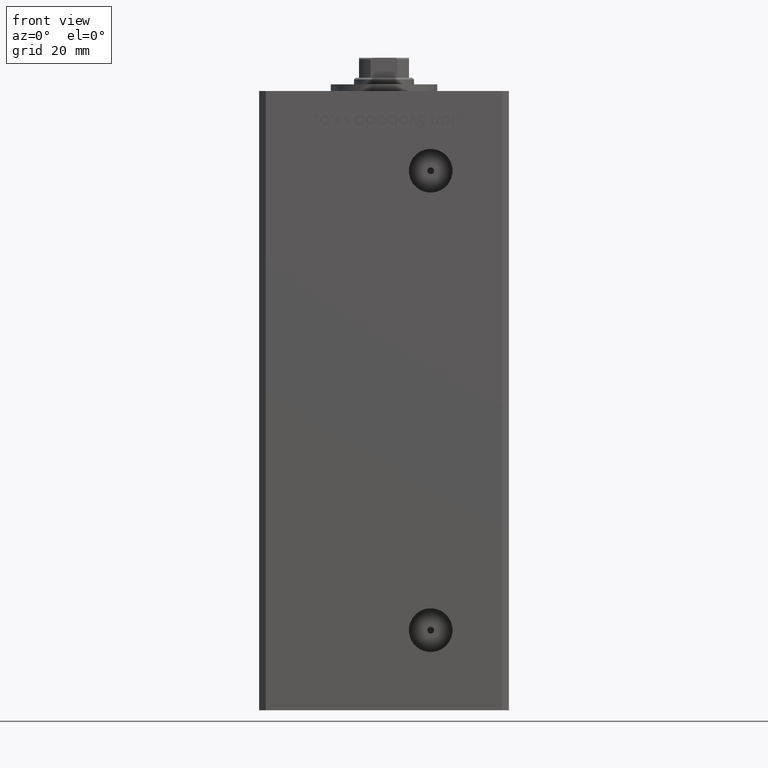
[diagram: clean part render]
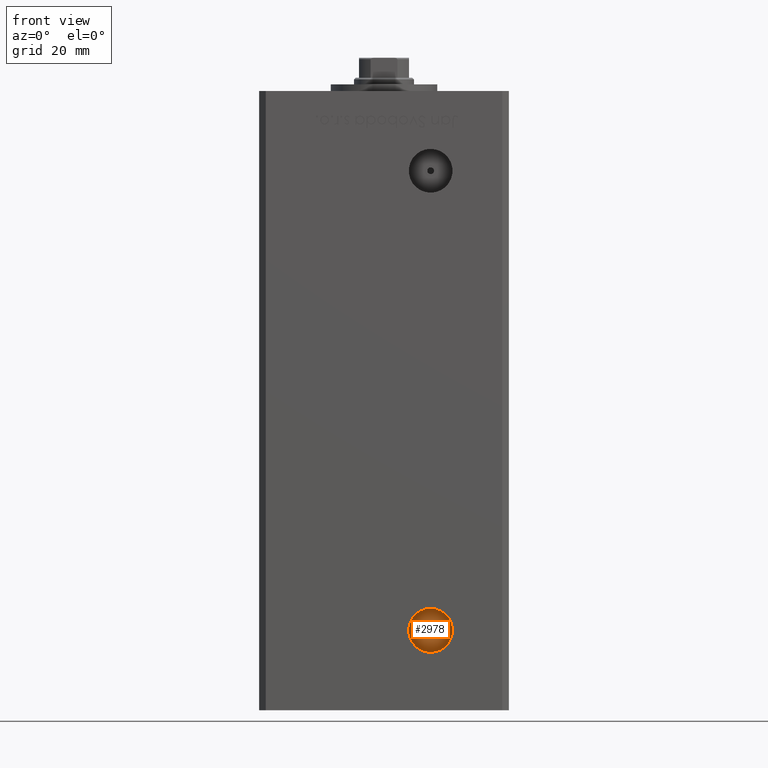
[diagram: same view with one face highlighted and labeled with its STEP entity id]
A machine part, front view. The second image highlights one B-rep face of the part: STEP entity #2978.
In plain terms, the highlighted planar face has unit normal (0, -1, 0).
Its self-contained STEP definition (entity closure, byte-faithful):
#501 = DIRECTION ( 'NONE',  ( 0.000000000000000000, 0.000000000000000000, -1.000000000000000000 ) ) ;
#1686 = DIRECTION ( 'NONE',  ( 0.000000000000000000, -1.000000000000000000, 0.000000000000000000 ) ) ;
#2355 = FACE_BOUND ( 'NONE', #24015, .T. ) ;
#2869 = FACE_OUTER_BOUND ( 'NONE', #18415, .T. ) ;
#2978 = ADVANCED_FACE ( 'NONE', ( #2355, #2869 ), #18972, .T. ) ;
#5294 = EDGE_CURVE ( 'NONE', #6809, #16488, #25967, .T. ) ;
#5762 = CARTESIAN_POINT ( 'NONE',  ( 13.99999999999999112, -19.50000000000000355, 9.000000000000007105 ) ) ;
#6809 = VERTEX_POINT ( 'NONE', #43335 ) ;
#7517 = CIRCLE ( 'NONE', #38744, 6.579999999999998295 ) ;
#10951 = CIRCLE ( 'NONE', #48111, 6.579999999999998295 ) ;
#10971 = ORIENTED_EDGE ( 'NONE', *, *, #40710, .T. ) ;
#12631 = CARTESIAN_POINT ( 'NONE',  ( 13.99999999999999112, -19.50000000000000355, 2.420000000000009699 ) ) ;
#13824 = DIRECTION ( 'NONE',  ( 0.000000000000000000, 0.000000000000000000, -1.000000000000000000 ) ) ;
#14503 = DIRECTION ( 'NONE',  ( 0.000000000000000000, -1.000000000000000000, 0.000000000000000000 ) ) ;
#15414 = EDGE_CURVE ( 'NONE', #16514, #35369, #10951, .T. ) ;
#15526 = CARTESIAN_POINT ( 'NONE',  ( 13.99999999999999112, -19.50000000000000355, 10.00000000000000888 ) ) ;
#16042 = ORIENTED_EDGE ( 'NONE', *, *, #42181, .F. ) ;
#16307 = DIRECTION ( 'NONE',  ( 0.000000000000000000, 0.000000000000000000, -1.000000000000000000 ) ) ;
#16488 = VERTEX_POINT ( 'NONE', #15526 ) ;
#16514 = VERTEX_POINT ( 'NONE', #12631 ) ;
#18415 = EDGE_LOOP ( 'NONE', ( #45710, #10971 ) ) ;
#18972 = PLANE ( 'NONE',  #30929 ) ;
#22748 = CARTESIAN_POINT ( 'NONE',  ( 13.99999999999999112, -19.50000000000000355, 9.000000000000007105 ) ) ;
#23970 = DIRECTION ( 'NONE',  ( 0.000000000000000000, -1.000000000000000000, 0.000000000000000000 ) ) ;
#24015 = EDGE_LOOP ( 'NONE', ( #24696, #16042 ) ) ;
#24406 = AXIS2_PLACEMENT_3D ( 'NONE', #49175, #1686, #13824 ) ;
#24696 = ORIENTED_EDGE ( 'NONE', *, *, #5294, .F. ) ;
#25046 = DIRECTION ( 'NONE',  ( 0.000000000000000000, 0.000000000000000000, -1.000000000000000000 ) ) ;
#25967 = CIRCLE ( 'NONE', #31806, 1.000000000000000888 ) ;
#29526 = DIRECTION ( 'NONE',  ( 0.000000000000000000, -1.000000000000000000, 0.000000000000000000 ) ) ;
#30609 = DIRECTION ( 'NONE',  ( 0.000000000000000000, -0.000000000000000000, -1.000000000000000000 ) ) ;
#30929 = AXIS2_PLACEMENT_3D ( 'NONE', #35060, #14503, #30609 ) ;
#31806 = AXIS2_PLACEMENT_3D ( 'NONE', #37207, #40626, #501 ) ;
#35060 = CARTESIAN_POINT ( 'NONE',  ( 13.99999999999999112, -19.50000000000000355, 9.000000000000007105 ) ) ;
#35369 = VERTEX_POINT ( 'NONE', #37346 ) ;
#37207 = CARTESIAN_POINT ( 'NONE',  ( 13.99999999999999112, -19.50000000000000355, 9.000000000000007105 ) ) ;
#37346 = CARTESIAN_POINT ( 'NONE',  ( 13.99999999999999112, -19.50000000000000355, 15.58000000000000718 ) ) ;
#38744 = AXIS2_PLACEMENT_3D ( 'NONE', #5762, #29526, #25046 ) ;
#40626 = DIRECTION ( 'NONE',  ( 0.000000000000000000, -1.000000000000000000, 0.000000000000000000 ) ) ;
#40710 = EDGE_CURVE ( 'NONE', #35369, #16514, #7517, .T. ) ;
#42181 = EDGE_CURVE ( 'NONE', #16488, #6809, #47137, .T. ) ;
#43335 = CARTESIAN_POINT ( 'NONE',  ( 13.99999999999999112, -19.50000000000000355, 8.000000000000007105 ) ) ;
#45710 = ORIENTED_EDGE ( 'NONE', *, *, #15414, .T. ) ;
#47137 = CIRCLE ( 'NONE', #24406, 1.000000000000000888 ) ;
#48111 = AXIS2_PLACEMENT_3D ( 'NONE', #22748, #23970, #16307 ) ;
#49175 = CARTESIAN_POINT ( 'NONE',  ( 13.99999999999999112, -19.50000000000000355, 9.000000000000007105 ) ) ;